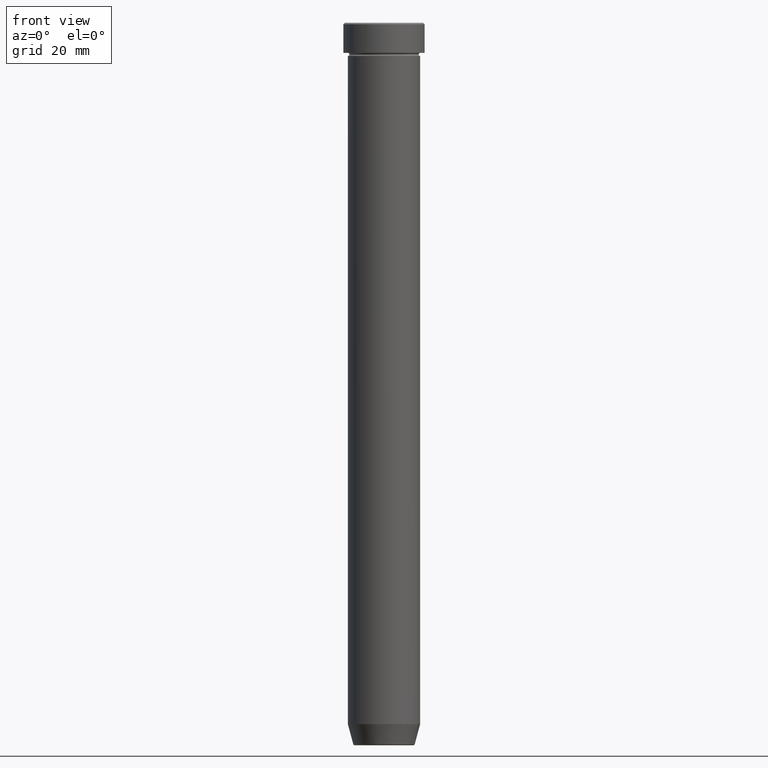
[diagram: clean part render]
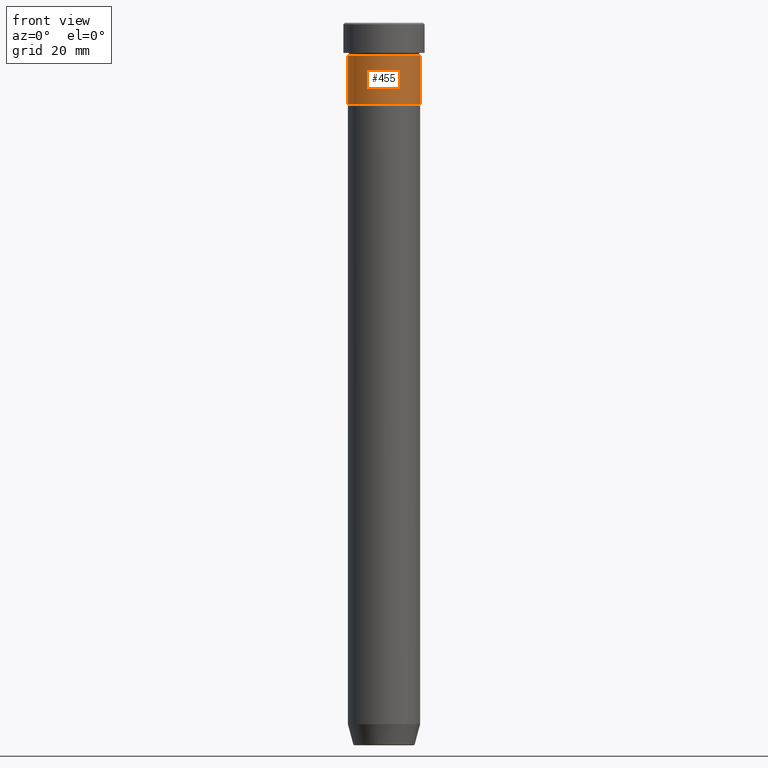
[diagram: same view with one face highlighted and labeled with its STEP entity id]
A machine part, front view. The second image highlights one B-rep face of the part: STEP entity #455.
In plain terms, the highlighted cylindrical surface (edge-blend (fillet) strip) has radius 12 mm, axis along (-0, -0, 1).
Its self-contained STEP definition (entity closure, byte-faithful):
#13 = DIRECTION ( 'NONE',  ( 1.000000000000000000, 0.000000000000000000, 0.000000000000000000 ) ) ;
#18 = VECTOR ( 'NONE', #448, 1000.000000000000000 ) ;
#32 = LINE ( 'NONE', #212, #18 ) ;
#49 = DIRECTION ( 'NONE',  ( -0.000000000000000000, -0.000000000000000000, 1.000000000000000000 ) ) ;
#54 = CARTESIAN_POINT ( 'NONE',  ( 12.00000000000000000, 0.000000000000000000, -11.00000000000000000 ) ) ;
#75 = VERTEX_POINT ( 'NONE', #233 ) ;
#121 = ORIENTED_EDGE ( 'NONE', *, *, #364, .F. ) ;
#139 = CARTESIAN_POINT ( 'NONE',  ( 0.000000000000000000, 0.000000000000000000, -11.00000000000000000 ) ) ;
#143 = DIRECTION ( 'NONE',  ( 1.000000000000000000, 0.000000000000000000, 0.000000000000000000 ) ) ;
#152 = DIRECTION ( 'NONE',  ( -0.000000000000000000, -0.000000000000000000, 1.000000000000000000 ) ) ;
#156 = EDGE_CURVE ( 'NONE', #489, #340, #508, .T. ) ;
#173 = FACE_OUTER_BOUND ( 'NONE', #531, .T. ) ;
#199 = CARTESIAN_POINT ( 'NONE',  ( 0.000000000000000000, 0.000000000000000000, -27.00000000000000000 ) ) ;
#212 = CARTESIAN_POINT ( 'NONE',  ( -12.00000000000000000, 1.469576158976823947E-15, 0.000000000000000000 ) ) ;
#220 = DIRECTION ( 'NONE',  ( -0.000000000000000000, -0.000000000000000000, 1.000000000000000000 ) ) ;
#227 = CYLINDRICAL_SURFACE ( 'NONE', #241, 12.00000000000000000 ) ;
#230 = CARTESIAN_POINT ( 'NONE',  ( -12.00000000000000000, 1.469576158976823947E-15, -11.00000000000000000 ) ) ;
#233 = CARTESIAN_POINT ( 'NONE',  ( -12.00000000000000000, 1.469576158976823947E-15, -27.00000000000000000 ) ) ;
#236 = EDGE_CURVE ( 'NONE', #75, #545, #450, .T. ) ;
#241 = AXIS2_PLACEMENT_3D ( 'NONE', #314, #585, #360 ) ;
#252 = ORIENTED_EDGE ( 'NONE', *, *, #236, .T. ) ;
#269 = AXIS2_PLACEMENT_3D ( 'NONE', #199, #152, #13 ) ;
#314 = CARTESIAN_POINT ( 'NONE',  ( 0.000000000000000000, 0.000000000000000000, 0.000000000000000000 ) ) ;
#340 = VERTEX_POINT ( 'NONE', #54 ) ;
#360 = DIRECTION ( 'NONE',  ( 1.000000000000000000, 0.000000000000000000, 0.000000000000000000 ) ) ;
#364 = EDGE_CURVE ( 'NONE', #75, #489, #32, .T. ) ;
#430 = EDGE_CURVE ( 'NONE', #545, #340, #505, .T. ) ;
#448 = DIRECTION ( 'NONE',  ( -0.000000000000000000, -0.000000000000000000, 1.000000000000000000 ) ) ;
#450 = CIRCLE ( 'NONE', #269, 12.00000000000000000 ) ;
#454 = CARTESIAN_POINT ( 'NONE',  ( 12.00000000000000000, 0.000000000000000000, 0.000000000000000000 ) ) ;
#455 = ADVANCED_FACE ( 'NONE', ( #173 ), #227, .T. ) ;
#478 = ORIENTED_EDGE ( 'NONE', *, *, #156, .F. ) ;
#482 = ORIENTED_EDGE ( 'NONE', *, *, #430, .T. ) ;
#489 = VERTEX_POINT ( 'NONE', #230 ) ;
#505 = LINE ( 'NONE', #454, #597 ) ;
#508 = CIRCLE ( 'NONE', #595, 12.00000000000000000 ) ;
#531 = EDGE_LOOP ( 'NONE', ( #121, #252, #482, #478 ) ) ;
#545 = VERTEX_POINT ( 'NONE', #558 ) ;
#558 = CARTESIAN_POINT ( 'NONE',  ( 12.00000000000000000, 0.000000000000000000, -27.00000000000000000 ) ) ;
#585 = DIRECTION ( 'NONE',  ( -0.000000000000000000, -0.000000000000000000, 1.000000000000000000 ) ) ;
#595 = AXIS2_PLACEMENT_3D ( 'NONE', #139, #49, #143 ) ;
#597 = VECTOR ( 'NONE', #220, 1000.000000000000000 ) ;